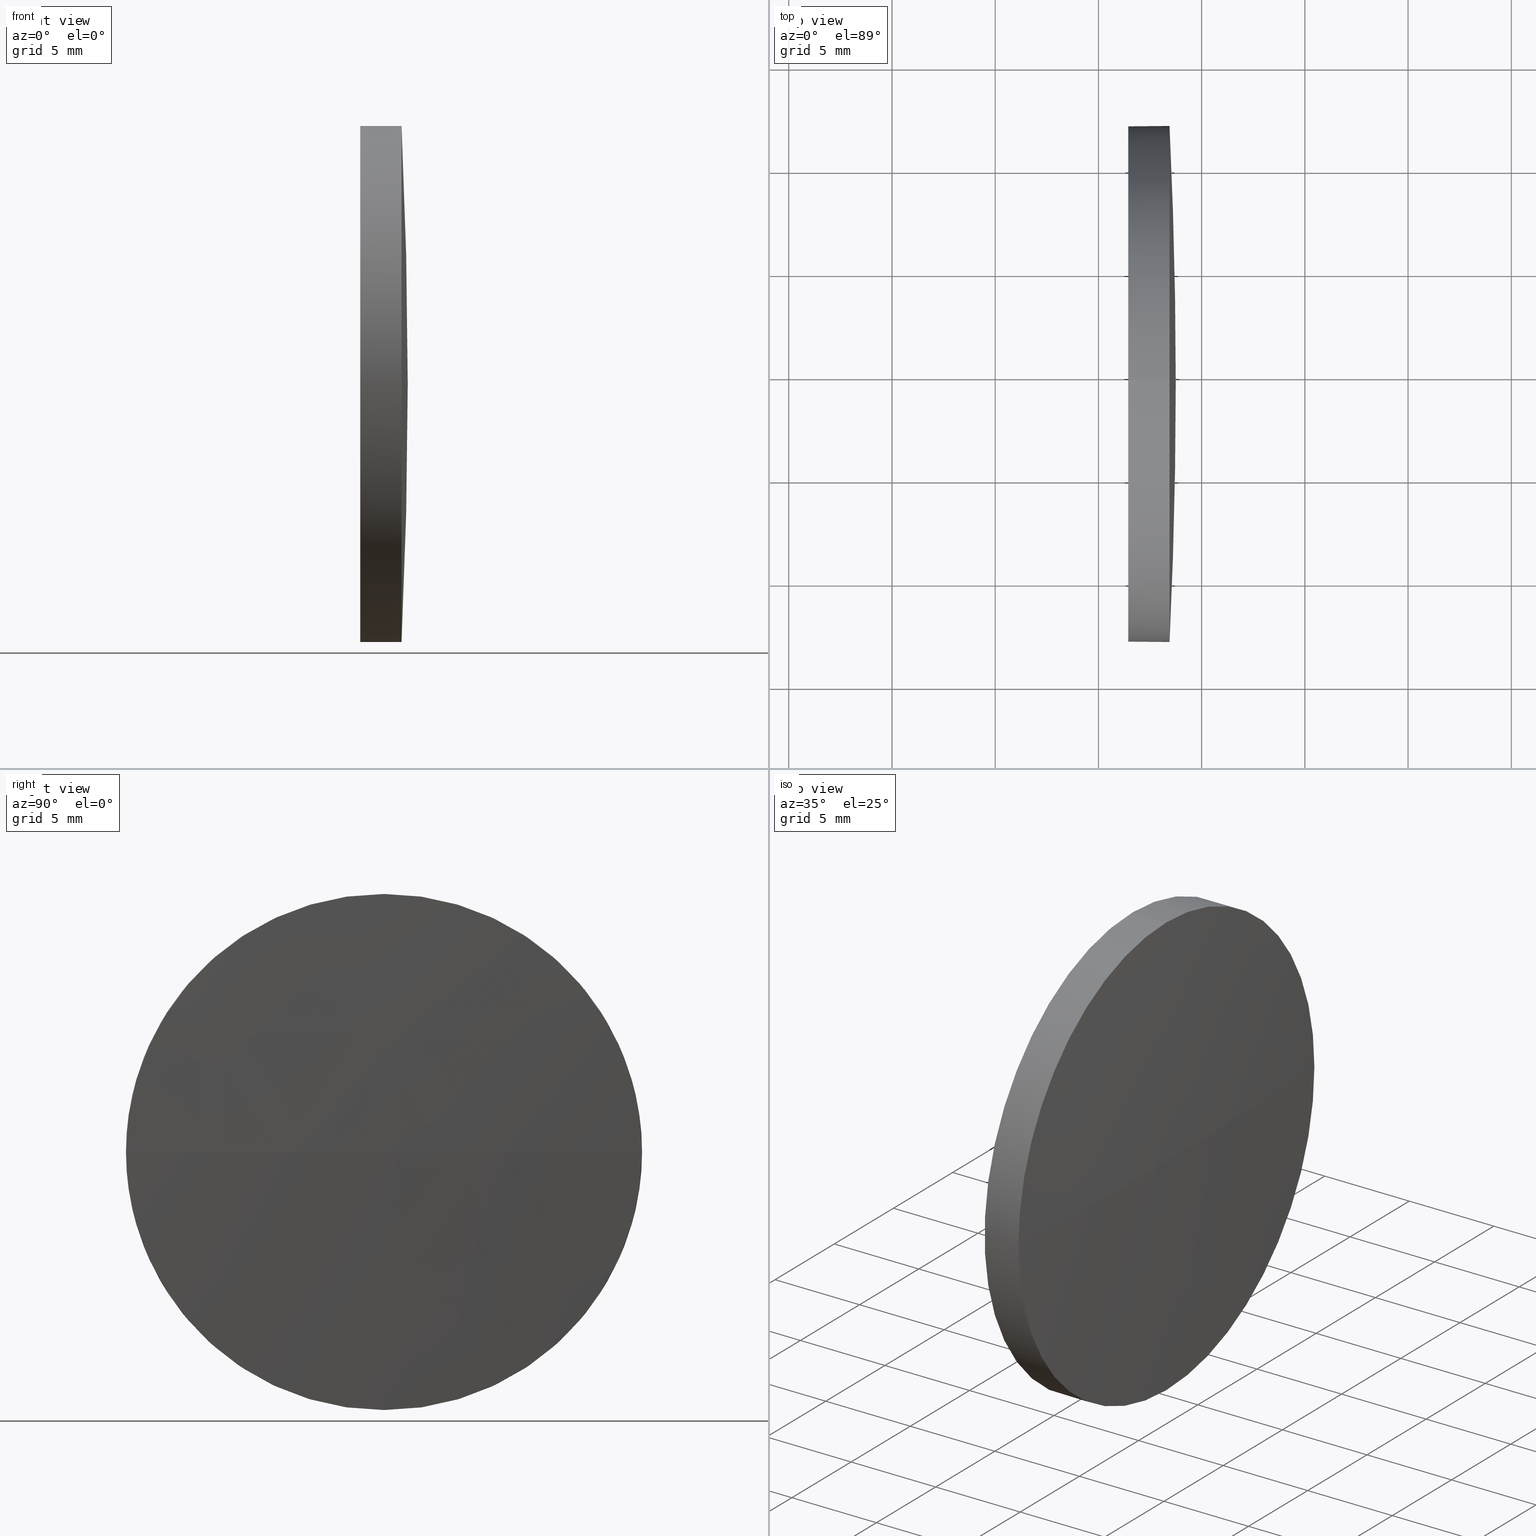
[diagram: canonical four-view strip — front | top / right | iso, engineering-drawing reading convention]
A machine part, canonical four-view strip (front | top / right | iso — engineering-drawing reading convention). The complete STEP part file that produces these views, byte-faithful:
ISO-10303-21;
HEADER;
FILE_DESCRIPTION (( 'STEP AP214' ),
    '1' );
FILE_NAME ('100051.STEP',
    '2019-04-30T01:08:56',
    ( '' ),
    ( '' ),
    'SwSTEP 2.0',
    'SolidWorks 2016',
    '' );
FILE_SCHEMA (( 'AUTOMOTIVE_DESIGN' ));
ENDSEC;

DATA;
#1 = ORIENTED_EDGE ( 'NONE', *, *, #39, .F. ) ;
#2 = ORIENTED_EDGE ( 'NONE', *, *, #152, .F. ) ;
#3 = CARTESIAN_POINT ( 'NONE',  ( 433.4454962620779400, 164.5680277828015500, -12.50000000000001100 ) ) ;
#4 = VERTEX_POINT ( 'NONE', #118 ) ;
#5 = AXIS2_PLACEMENT_3D ( 'NONE', #15, #78, #89 ) ;
#6 = APPLICATION_CONTEXT ( 'automotive_design' ) ;
#7 = EDGE_CURVE ( 'NONE', #125, #85, #184, .T. ) ;
#8 = APPLICATION_PROTOCOL_DEFINITION ( 'draft international standard', 'automotive_design', 1998, #6 ) ;
#9 = SURFACE_STYLE_USAGE ( .BOTH. , #21 ) ;
#10 = LINE ( 'NONE', #155, #74 ) ;
#11 = ORIENTED_EDGE ( 'NONE', *, *, #152, .T. ) ;
#12 = ADVANCED_FACE ( 'NONE', ( #36 ), #29, .T. ) ;
#13 = DIRECTION ( 'NONE',  ( 0.0000000000000000000, 0.0000000000000000000, 1.000000000000000000 ) ) ;
#14 =( GEOMETRIC_REPRESENTATION_CONTEXT ( 3 ) GLOBAL_UNCERTAINTY_ASSIGNED_CONTEXT ( ( #103 ) ) GLOBAL_UNIT_ASSIGNED_CONTEXT ( ( #162, #145, #69 ) ) REPRESENTATION_CONTEXT ( 'NONE', 'WORKASPACE' ) );
#15 = CARTESIAN_POINT ( 'NONE',  ( 431.4454962620779400, 164.5680277828015500, 0.0000000000000000000 ) ) ;
#16 = ORIENTED_EDGE ( 'NONE', *, *, #30, .T. ) ;
#17 = CARTESIAN_POINT ( 'NONE',  ( 433.4454962620779400, 152.0680277828014400, 0.0000000000000000000 ) ) ;
#18 = MECHANICAL_DESIGN_GEOMETRIC_PRESENTATION_REPRESENTATION (  '', ( #127 ), #144 ) ;
#19 = COLOUR_RGB ( '',1.000000000000000000, 1.000000000000000000, 1.000000000000000000 ) ;
#20 = DIRECTION ( 'NONE',  ( 0.0000000000000000000, 0.0000000000000000000, 1.000000000000000000 ) ) ;
#21 = SURFACE_SIDE_STYLE ('',( #84 ) ) ;
#22 = APPLICATION_PROTOCOL_DEFINITION ( 'draft international standard', 'automotive_design', 1998, #97 ) ;
#23 = AXIS2_PLACEMENT_3D ( 'NONE', #40, #75, #86 ) ;
#24 = CARTESIAN_POINT ( 'NONE',  ( 426.7034650201881000, 164.5680277828015500, 12.50000000000001100 ) ) ;
#25 = EDGE_CURVE ( 'NONE', #130, #156, #58, .T. ) ;
#26 = COLOUR_RGB ( '',1.000000000000000000, 1.000000000000000000, 1.000000000000000000 ) ;
#27 = EDGE_CURVE ( 'NONE', #33, #174, #10, .T. ) ;
#28 = CIRCLE ( 'NONE', #167, 12.50000000000001100 ) ;
#29 = SPHERICAL_SURFACE ( 'NONE', #104, 260.5666666666724000 ) ;
#30 = EDGE_CURVE ( 'NONE', #130, #4, #105, .T. ) ;
#31 = DIRECTION ( 'NONE',  ( 0.0000000000000000000, 0.0000000000000000000, 1.000000000000000000 ) ) ;
#32 = EDGE_LOOP ( 'NONE', ( #79, #168, #100, #183 ) ) ;
#33 = VERTEX_POINT ( 'NONE', #3 ) ;
#34 = AXIS2_PLACEMENT_3D ( 'NONE', #120, #170, #38 ) ;
#35 = CIRCLE ( 'NONE', #181, 12.50000000000001100 ) ;
#36 = FACE_OUTER_BOUND ( 'NONE', #32, .T. ) ;
#37 = FACE_OUTER_BOUND ( 'NONE', #137, .T. ) ;
#38 = DIRECTION ( 'NONE',  ( 0.0000000000000000000, -1.000000000000000000, -1.224646799147353200E-016 ) ) ;
#39 = EDGE_CURVE ( 'NONE', #125, #4, #153, .T. ) ;
#40 = CARTESIAN_POINT ( 'NONE',  ( 173.1788295954056000, 164.5680277828017800, 0.0000000000000000000 ) ) ;
#41 = DIRECTION ( 'NONE',  ( 0.0000000000000000000, 0.0000000000000000000, 1.000000000000000000 ) ) ;
#42 = AXIS2_PLACEMENT_3D ( 'NONE', #110, #111, #46 ) ;
#43 = CARTESIAN_POINT ( 'NONE',  ( 433.4454962620779400, 164.5680277828015500, 12.50000000000001100 ) ) ;
#44 = FACE_OUTER_BOUND ( 'NONE', #62, .T. ) ;
#45 = AXIS2_PLACEMENT_3D ( 'NONE', #175, #51, #158 ) ;
#46 = DIRECTION ( 'NONE',  ( 0.0000000000000000000, 0.0000000000000000000, 1.000000000000000000 ) ) ;
#47 = DIRECTION ( 'NONE',  ( -1.000000000000000000, -0.0000000000000000000, -0.0000000000000000000 ) ) ;
#48 = SPHERICAL_SURFACE ( 'NONE', #116, 260.5666666666724000 ) ;
#49 = AXIS2_PLACEMENT_3D ( 'NONE', #73, #107, #64 ) ;
#50 = PRESENTATION_STYLE_ASSIGNMENT (( #128 ) ) ;
#51 = DIRECTION ( 'NONE',  ( 1.000000000000000000, 0.0000000000000000000, 0.0000000000000000000 ) ) ;
#52 = FILL_AREA_STYLE_COLOUR ( '', #26 ) ;
#53 = CARTESIAN_POINT ( 'NONE',  ( 433.4454962620779400, 164.5680277828015500, 0.0000000000000000000 ) ) ;
#54 = EDGE_CURVE ( 'NONE', #174, #85, #141, .T. ) ;
#55 = CIRCLE ( 'NONE', #5, 12.50000000000001100 ) ;
#56 = PRODUCT_DEFINITION ( 'δ֪', '', #72, #68 ) ;
#57 = PRESENTATION_LAYER_ASSIGNMENT (  '', '', ( #122 ) ) ;
#58 = CIRCLE ( 'NONE', #23, 260.5666666666724000 ) ;
#59 = ORIENTED_EDGE ( 'NONE', *, *, #60, .F. ) ;
#60 = EDGE_CURVE ( 'NONE', #156, #125, #90, .T. ) ;
#61 = UNCERTAINTY_MEASURE_WITH_UNIT (LENGTH_MEASURE( 1.000000000000000100E-005 ), #161, 'distance_accuracy_value', 'NONE');
#62 = EDGE_LOOP ( 'NONE', ( #11, #66 ) ) ;
#63 = ADVANCED_FACE ( 'NONE', ( #37 ), #48, .T. ) ;
#64 = DIRECTION ( 'NONE',  ( 0.0000000000000000000, 0.0000000000000000000, 1.000000000000000000 ) ) ;
#65 = DIRECTION ( 'NONE',  ( -1.000000000000000000, -0.0000000000000000000, -0.0000000000000000000 ) ) ;
#66 = ORIENTED_EDGE ( 'NONE', *, *, #54, .T. ) ;
#67 =( NAMED_UNIT ( * ) SI_UNIT ( $, .STERADIAN. ) SOLID_ANGLE_UNIT ( ) );
#68 = PRODUCT_DEFINITION_CONTEXT ( 'detailed design', #97, 'design' ) ;
#69 =( NAMED_UNIT ( * ) SI_UNIT ( $, .STERADIAN. ) SOLID_ANGLE_UNIT ( ) );
#70 = CYLINDRICAL_SURFACE ( 'NONE', #83, 12.50000000000001100 ) ;
#71 = AXIS2_PLACEMENT_3D ( 'NONE', #108, #139, #31 ) ;
#72 = PRODUCT_DEFINITION_FORMATION_WITH_SPECIFIED_SOURCE ( '�κ�', '', #150, .NOT_KNOWN. ) ;
#73 = CARTESIAN_POINT ( 'NONE',  ( 433.4454962620779400, 164.5680277828015500, 0.0000000000000000000 ) ) ;
#74 = VECTOR ( 'NONE', #65, 1000.000000000000000 ) ;
#75 = DIRECTION ( 'NONE',  ( 0.0000000000000000000, 0.0000000000000000000, -1.000000000000000000 ) ) ;
#76 = ADVANCED_FACE ( 'NONE', ( #44 ), #126, .F. ) ;
#77 = CARTESIAN_POINT ( 'NONE',  ( 173.1788295954056000, 164.5680277828017800, 0.0000000000000000000 ) ) ;
#78 = DIRECTION ( 'NONE',  ( -1.000000000000000000, -0.0000000000000000000, -0.0000000000000000000 ) ) ;
#79 = ORIENTED_EDGE ( 'NONE', *, *, #30, .F. ) ;
#80 = SURFACE_SIDE_STYLE ('',( #87 ) ) ;
#81 = DIRECTION ( 'NONE',  ( -1.000000000000000000, -0.0000000000000000000, -0.0000000000000000000 ) ) ;
#82 = FILL_AREA_STYLE ('',( #180 ) ) ;
#83 = AXIS2_PLACEMENT_3D ( 'NONE', #159, #171, #88 ) ;
#84 = SURFACE_STYLE_FILL_AREA ( #82 ) ;
#85 = VERTEX_POINT ( 'NONE', #176 ) ;
#86 = DIRECTION ( 'NONE',  ( -1.000000000000000000, 0.0000000000000000000, 0.0000000000000000000 ) ) ;
#87 = SURFACE_STYLE_FILL_AREA ( #113 ) ;
#88 = DIRECTION ( 'NONE',  ( 0.0000000000000000000, 0.0000000000000000000, 1.000000000000000000 ) ) ;
#89 = DIRECTION ( 'NONE',  ( 0.0000000000000000000, 0.0000000000000000000, 1.000000000000000000 ) ) ;
#90 = CIRCLE ( 'NONE', #177, 12.50000000000001100 ) ;
#91 = ORIENTED_EDGE ( 'NONE', *, *, #25, .F. ) ;
#92 = DIRECTION ( 'NONE',  ( -1.000000000000000000, -0.0000000000000000000, -0.0000000000000000000 ) ) ;
#93 = ADVANCED_BREP_SHAPE_REPRESENTATION ( '100051', ( #132, #106 ), #14 ) ;
#94 =( NAMED_UNIT ( * ) PLANE_ANGLE_UNIT ( ) SI_UNIT ( $, .RADIAN. ) );
#95 = CARTESIAN_POINT ( 'NONE',  ( 433.4454962620779400, 164.5680277828015500, 0.0000000000000000000 ) ) ;
#96 = ORIENTED_EDGE ( 'NONE', *, *, #39, .T. ) ;
#97 = APPLICATION_CONTEXT ( 'automotive_design' ) ;
#98 = CARTESIAN_POINT ( 'NONE',  ( 431.4454962620779400, 164.5680277828015500, -12.50000000000001100 ) ) ;
#99 = PRODUCT_CONTEXT ( 'NONE', #6, 'mechanical' ) ;
#100 = ORIENTED_EDGE ( 'NONE', *, *, #182, .F. ) ;
#101 = CYLINDRICAL_SURFACE ( 'NONE', #42, 12.50000000000001100 ) ;
#102 = EDGE_LOOP ( 'NONE', ( #119, #112, #109, #115, #131 ) ) ;
#103 = UNCERTAINTY_MEASURE_WITH_UNIT (LENGTH_MEASURE( 1.000000000000000100E-005 ), #162, 'distance_accuracy_value', 'NONE');
#104 = AXIS2_PLACEMENT_3D ( 'NONE', #134, #151, #186 ) ;
#105 = CIRCLE ( 'NONE', #34, 260.5666666666724000 ) ;
#106 = AXIS2_PLACEMENT_3D ( 'NONE', #114, #163, #179 ) ;
#107 = DIRECTION ( 'NONE',  ( -1.000000000000000000, -0.0000000000000000000, -0.0000000000000000000 ) ) ;
#108 = CARTESIAN_POINT ( 'NONE',  ( 431.4454962620779400, 164.5680277828015500, 0.0000000000000000000 ) ) ;
#109 = ORIENTED_EDGE ( 'NONE', *, *, #60, .T. ) ;
#110 = CARTESIAN_POINT ( 'NONE',  ( 426.7034650201881000, 164.5680277828015500, 0.0000000000000000000 ) ) ;
#111 = DIRECTION ( 'NONE',  ( -1.000000000000000000, -0.0000000000000000000, -0.0000000000000000000 ) ) ;
#112 = ORIENTED_EDGE ( 'NONE', *, *, #182, .T. ) ;
#113 = FILL_AREA_STYLE ('',( #52 ) ) ;
#114 = CARTESIAN_POINT ( 'NONE',  ( 0.0000000000000000000, 0.0000000000000000000, 0.0000000000000000000 ) ) ;
#115 = ORIENTED_EDGE ( 'NONE', *, *, #7, .T. ) ;
#116 = AXIS2_PLACEMENT_3D ( 'NONE', #77, #13, #124 ) ;
#117 = FACE_OUTER_BOUND ( 'NONE', #133, .T. ) ;
#118 = CARTESIAN_POINT ( 'NONE',  ( 433.4454962620779400, 177.0680277828018900, 1.530808498934205900E-015 ) ) ;
#119 = ORIENTED_EDGE ( 'NONE', *, *, #27, .F. ) ;
#120 = CARTESIAN_POINT ( 'NONE',  ( 173.1788295954056000, 164.5680277828017800, 0.0000000000000000000 ) ) ;
#121 = CARTESIAN_POINT ( 'NONE',  ( 433.7454962620780100, 164.5680277828017500, 0.0000000000000000000 ) ) ;
#122 = STYLED_ITEM ( 'NONE', ( #50 ), #132 ) ;
#123 = UNCERTAINTY_MEASURE_WITH_UNIT (LENGTH_MEASURE( 1.000000000000000100E-005 ), #160, 'distance_accuracy_value', 'NONE');
#124 = DIRECTION ( 'NONE',  ( 0.0000000000000000000, -1.000000000000000000, 0.0000000000000000000 ) ) ;
#125 = VERTEX_POINT ( 'NONE', #43 ) ;
#126 = PLANE ( 'NONE',  #45 ) ;
#127 = STYLED_ITEM ( 'NONE', ( #165 ), #93 ) ;
#128 = SURFACE_STYLE_USAGE ( .BOTH. , #80 ) ;
#129 =( NAMED_UNIT ( * ) SI_UNIT ( $, .STERADIAN. ) SOLID_ANGLE_UNIT ( ) );
#130 = VERTEX_POINT ( 'NONE', #121 ) ;
#131 = ORIENTED_EDGE ( 'NONE', *, *, #54, .F. ) ;
#132 = MANIFOLD_SOLID_BREP ( '��ת1', #185 ) ;
#133 = EDGE_LOOP ( 'NONE', ( #149, #136, #2, #146, #96 ) ) ;
#134 = CARTESIAN_POINT ( 'NONE',  ( 173.1788295954056000, 164.5680277828017800, 0.0000000000000000000 ) ) ;
#135 = VECTOR ( 'NONE', #166, 1000.000000000000000 ) ;
#136 = ORIENTED_EDGE ( 'NONE', *, *, #27, .T. ) ;
#137 = EDGE_LOOP ( 'NONE', ( #91, #16, #1, #59 ) ) ;
#138 = ADVANCED_FACE ( 'NONE', ( #117 ), #101, .T. ) ;
#139 = DIRECTION ( 'NONE',  ( -1.000000000000000000, -0.0000000000000000000, -0.0000000000000000000 ) ) ;
#140 = DIRECTION ( 'NONE',  ( 0.0000000000000000000, 0.0000000000000000000, 1.000000000000000000 ) ) ;
#141 = CIRCLE ( 'NONE', #71, 12.50000000000001100 ) ;
#142 = EDGE_CURVE ( 'NONE', #4, #33, #28, .T. ) ;
#143 = PRODUCT_DEFINITION_SHAPE ( 'NONE', 'NONE',  #56 ) ;
#144 =( GEOMETRIC_REPRESENTATION_CONTEXT ( 3 ) GLOBAL_UNCERTAINTY_ASSIGNED_CONTEXT ( ( #61 ) ) GLOBAL_UNIT_ASSIGNED_CONTEXT ( ( #161, #94, #129 ) ) REPRESENTATION_CONTEXT ( 'NONE', 'WORKASPACE' ) );
#145 =( NAMED_UNIT ( * ) PLANE_ANGLE_UNIT ( ) SI_UNIT ( $, .RADIAN. ) );
#146 = ORIENTED_EDGE ( 'NONE', *, *, #7, .F. ) ;
#147 = MECHANICAL_DESIGN_GEOMETRIC_PRESENTATION_REPRESENTATION (  '', ( #122 ), #157 ) ;
#148 = FACE_OUTER_BOUND ( 'NONE', #102, .T. ) ;
#149 = ORIENTED_EDGE ( 'NONE', *, *, #142, .T. ) ;
#150 = PRODUCT ( '100051', '100051', '', ( #99 ) ) ;
#151 = DIRECTION ( 'NONE',  ( 0.0000000000000000000, 0.0000000000000000000, 1.000000000000000000 ) ) ;
#152 = EDGE_CURVE ( 'NONE', #85, #174, #55, .T. ) ;
#153 = CIRCLE ( 'NONE', #49, 12.50000000000001100 ) ;
#154 = PRODUCT_RELATED_PRODUCT_CATEGORY ( 'part', '', ( #150 ) ) ;
#155 = CARTESIAN_POINT ( 'NONE',  ( 426.7034650201881000, 164.5680277828015500, -12.50000000000001100 ) ) ;
#156 = VERTEX_POINT ( 'NONE', #17 ) ;
#157 =( GEOMETRIC_REPRESENTATION_CONTEXT ( 3 ) GLOBAL_UNCERTAINTY_ASSIGNED_CONTEXT ( ( #123 ) ) GLOBAL_UNIT_ASSIGNED_CONTEXT ( ( #160, #172, #67 ) ) REPRESENTATION_CONTEXT ( 'NONE', 'WORKASPACE' ) );
#158 = DIRECTION ( 'NONE',  ( 0.0000000000000000000, 0.0000000000000000000, -1.000000000000000000 ) ) ;
#159 = CARTESIAN_POINT ( 'NONE',  ( 426.7034650201881000, 164.5680277828015500, 0.0000000000000000000 ) ) ;
#160 =( LENGTH_UNIT ( ) NAMED_UNIT ( * ) SI_UNIT ( .MILLI., .METRE. ) );
#161 =( LENGTH_UNIT ( ) NAMED_UNIT ( * ) SI_UNIT ( .MILLI., .METRE. ) );
#162 =( LENGTH_UNIT ( ) NAMED_UNIT ( * ) SI_UNIT ( .MILLI., .METRE. ) );
#163 = DIRECTION ( 'NONE',  ( 0.0000000000000000000, 0.0000000000000000000, 1.000000000000000000 ) ) ;
#164 = SHAPE_DEFINITION_REPRESENTATION ( #143, #93 ) ;
#165 = PRESENTATION_STYLE_ASSIGNMENT (( #9 ) ) ;
#166 = DIRECTION ( 'NONE',  ( -1.000000000000000000, -0.0000000000000000000, -0.0000000000000000000 ) ) ;
#167 = AXIS2_PLACEMENT_3D ( 'NONE', #178, #81, #140 ) ;
#168 = ORIENTED_EDGE ( 'NONE', *, *, #25, .T. ) ;
#169 = ADVANCED_FACE ( 'NONE', ( #148 ), #70, .T. ) ;
#170 = DIRECTION ( 'NONE',  ( 0.0000000000000000000, -1.224646799147353200E-016, 1.000000000000000000 ) ) ;
#171 = DIRECTION ( 'NONE',  ( -1.000000000000000000, -0.0000000000000000000, -0.0000000000000000000 ) ) ;
#172 =( NAMED_UNIT ( * ) PLANE_ANGLE_UNIT ( ) SI_UNIT ( $, .RADIAN. ) );
#173 = PRESENTATION_LAYER_ASSIGNMENT (  '', '', ( #127 ) ) ;
#174 = VERTEX_POINT ( 'NONE', #98 ) ;
#175 = CARTESIAN_POINT ( 'NONE',  ( 431.4454962620779400, 164.5680277828015500, 0.0000000000000000000 ) ) ;
#176 = CARTESIAN_POINT ( 'NONE',  ( 431.4454962620779400, 164.5680277828015500, 12.50000000000001100 ) ) ;
#177 = AXIS2_PLACEMENT_3D ( 'NONE', #95, #92, #41 ) ;
#178 = CARTESIAN_POINT ( 'NONE',  ( 433.4454962620779400, 164.5680277828015500, 0.0000000000000000000 ) ) ;
#179 = DIRECTION ( 'NONE',  ( 1.000000000000000000, 0.0000000000000000000, 0.0000000000000000000 ) ) ;
#180 = FILL_AREA_STYLE_COLOUR ( '', #19 ) ;
#181 = AXIS2_PLACEMENT_3D ( 'NONE', #53, #47, #20 ) ;
#182 = EDGE_CURVE ( 'NONE', #33, #156, #35, .T. ) ;
#183 = ORIENTED_EDGE ( 'NONE', *, *, #142, .F. ) ;
#184 = LINE ( 'NONE', #24, #135 ) ;
#185 = CLOSED_SHELL ( 'NONE', ( #138, #63, #12, #169, #76 ) ) ;
#186 = DIRECTION ( 'NONE',  ( 0.0000000000000000000, -1.000000000000000000, 0.0000000000000000000 ) ) ;
ENDSEC;
END-ISO-10303-21;
